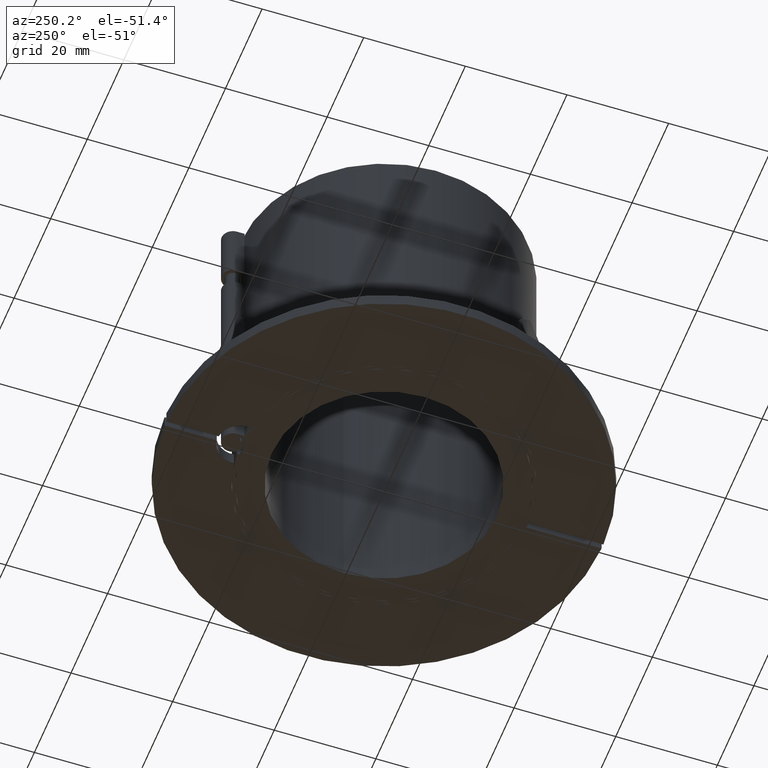
[diagram: clean part render]
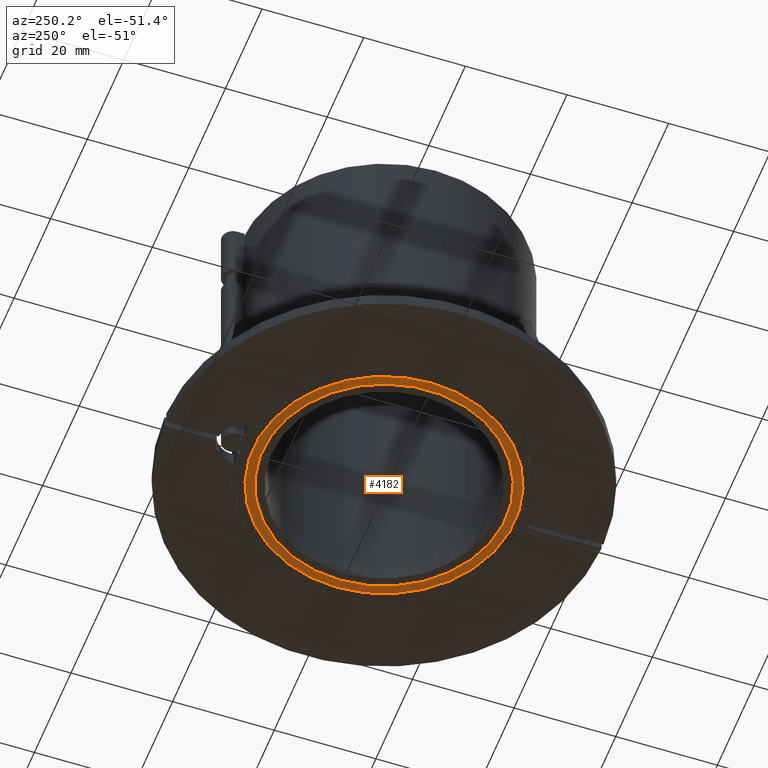
[diagram: same view with one face highlighted and labeled with its STEP entity id]
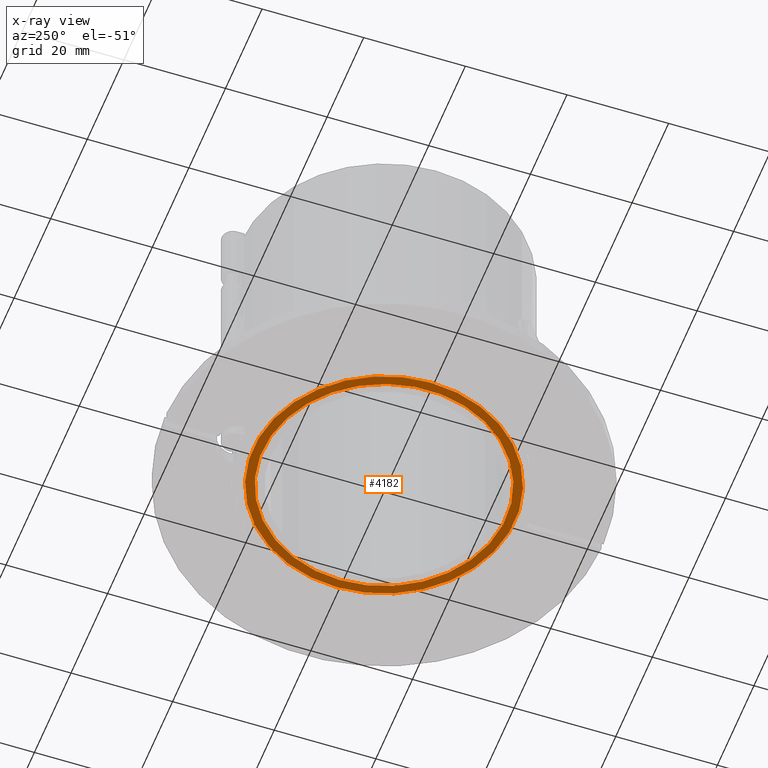
[diagram: x-ray of the same camera — body ghosted, the highlighted face saturated]
A machine part, auxiliary view. The second image highlights one B-rep face of the part: STEP entity #4182.
The next image is the same camera in x-ray: the body ghosted, the highlighted face saturated — about 0% of this face is hidden behind the body in this view.
In plain terms, the highlighted planar face has unit normal (0, 0, 1).
Its self-contained STEP definition (entity closure, byte-faithful):
#4128=CARTESIAN_POINT('',(23.949999999999978,-6.310588E-015,-2.658984E-015));
#4129=VERTEX_POINT('',#4128);
#4130=CARTESIAN_POINT('',(-2.119977E-014,-5.255141E-015,0.0));
#4131=DIRECTION('',(0.0,0.0,1.0));
#4132=DIRECTION('',(-1.0,0.0,0.0));
#4133=AXIS2_PLACEMENT_3D('',#4130,#4131,#4132);
#4134=CIRCLE('',#4133,23.949999999999999);
#4135=EDGE_CURVE('',#4129,#4129,#4134,.T.);
#4163=CARTESIAN_POINT('',(-2.261231E-014,-4.680268E-015,1.568228E-031));
#4164=DIRECTION('',(0.0,0.0,1.0));
#4165=DIRECTION('',(1.0,0.0,0.0));
#4166=AXIS2_PLACEMENT_3D('',#4163,#4164,#4165);
#4167=PLANE('',#4166);
#4168=CARTESIAN_POINT('',(25.749999999999979,-6.389911E-015,-2.858824E-015));
#4169=VERTEX_POINT('',#4168);
#4170=CARTESIAN_POINT('',(-2.119977E-014,-5.255141E-015,0.0));
#4171=DIRECTION('',(0.0,0.0,1.0));
#4172=DIRECTION('',(-1.0,0.0,0.0));
#4173=AXIS2_PLACEMENT_3D('',#4170,#4171,#4172);
#4174=CIRCLE('',#4173,25.75);
#4175=EDGE_CURVE('',#4169,#4169,#4174,.T.);
#4176=ORIENTED_EDGE('',*,*,#4175,.F.);
#4177=EDGE_LOOP('',(#4176));
#4178=FACE_OUTER_BOUND('',#4177,.T.);
#4179=ORIENTED_EDGE('',*,*,#4135,.T.);
#4180=EDGE_LOOP('',(#4179));
#4181=FACE_BOUND('',#4180,.T.);
#4182=ADVANCED_FACE('',(#4178,#4181),#4167,.F.);